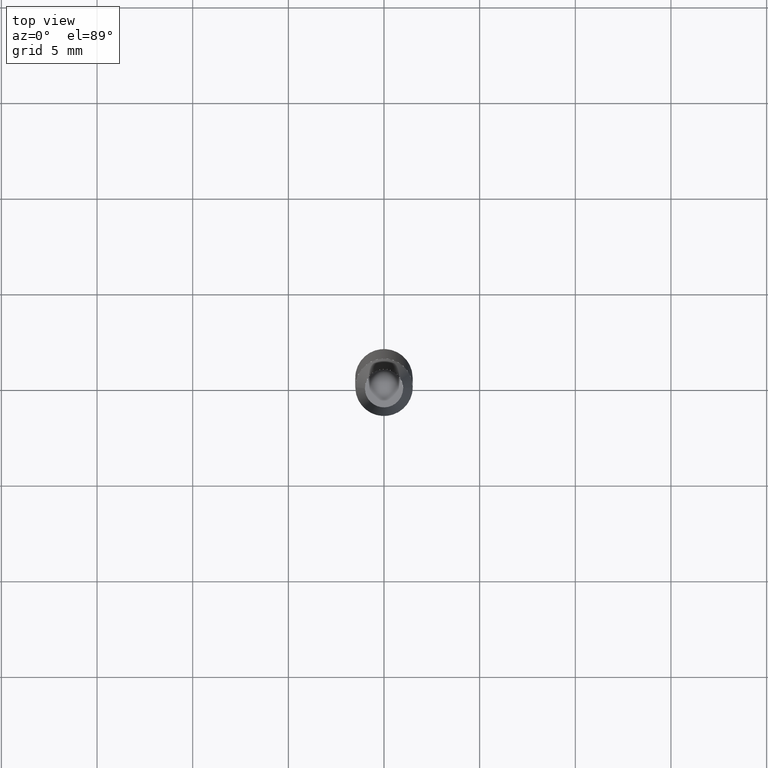
[diagram: clean part render]
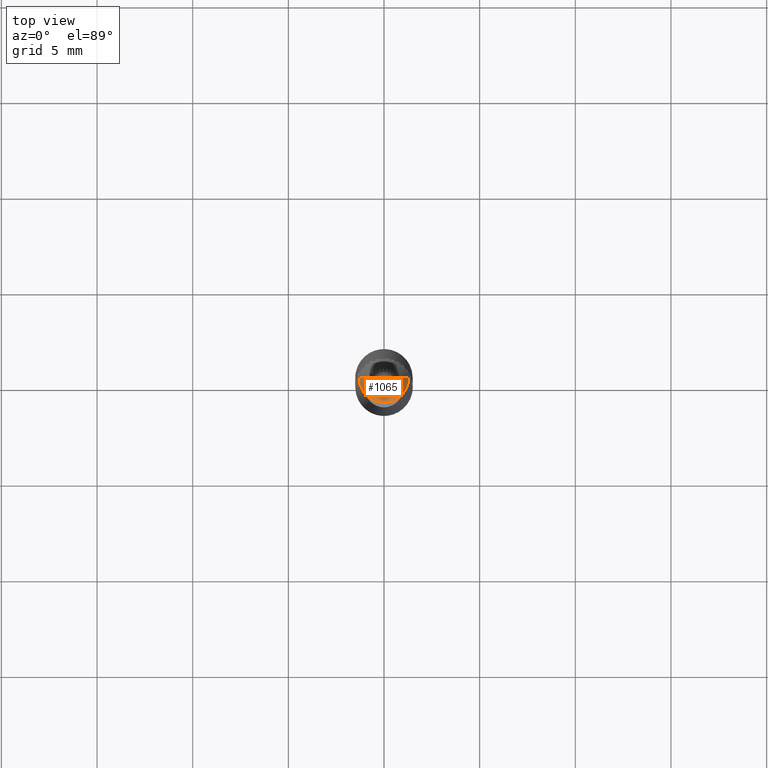
[diagram: same view with one face highlighted and labeled with its STEP entity id]
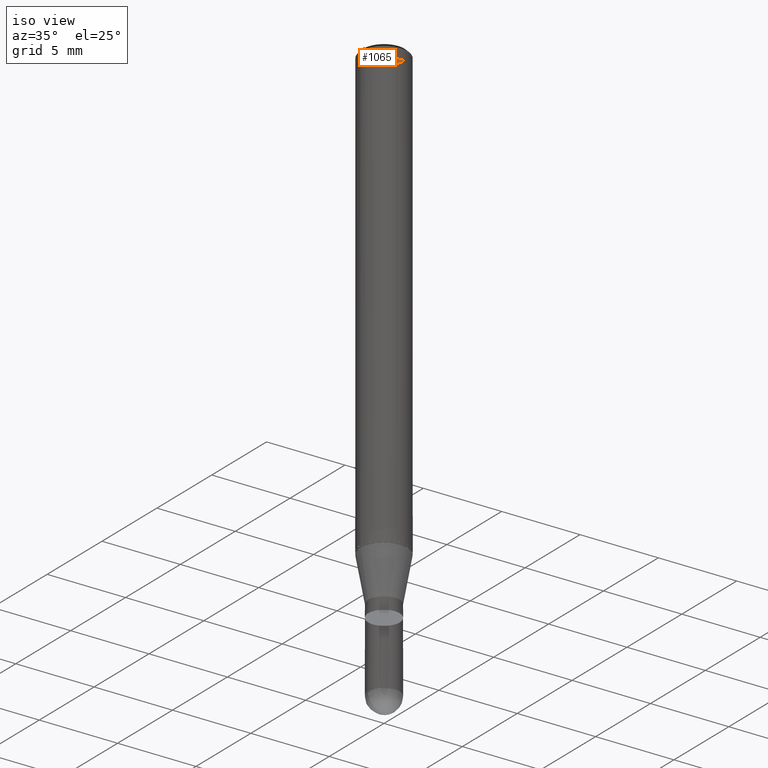
[diagram: same view with one face highlighted and labeled with its STEP entity id]
A machine part, top view. The second image highlights one B-rep face of the part: STEP entity #1065.
A second angle (iso view) of the same face is appended — the face is thin or edge-on in the first view.
In plain terms, the highlighted face is a freeform B-spline surface patch.
Its self-contained STEP definition (entity closure, byte-faithful):
#666=CARTESIAN_POINT('',(1.3,0.0,28.7));
#670=CARTESIAN_POINT('',(-1.3,0.0,28.7));
#671=CARTESIAN_POINT('',(0.0,0.0,28.7));
#684=CARTESIAN_POINT('',(-1.3,-1.3,28.7));
#685=CARTESIAN_POINT('',(0.0,-1.3,28.7));
#686=CARTESIAN_POINT('',(1.3,-1.3,28.7));
#1050=(
BOUNDED_SURFACE()
B_SPLINE_SURFACE(1,2,(
(#670,#684,#685,#686,#666),
(#671,#671,#671,#671,#671)
), .UNSPECIFIED.,.F.,.F.,.F.)
B_SPLINE_SURFACE_WITH_KNOTS((2,2),(3,2,3),(
0.0,1.0),(
0.0,0.5,1.0), .UNSPECIFIED.)
GEOMETRIC_REPRESENTATION_ITEM()
RATIONAL_B_SPLINE_SURFACE(((1.0,0.707106781187,1.0,0.707106781187,1.0),
(1.0,0.707106781187,1.0,0.707106781187,1.0)
))
REPRESENTATION_ITEM('')
SURFACE()
);
#1051=(
BOUNDED_CURVE()
B_SPLINE_CURVE(2,(#666,#686,#685,#684,#670),.UNSPECIFIED.,.F.,.F.)
B_SPLINE_CURVE_WITH_KNOTS((3,2,3),
(0.0,0.5,1.0),.UNSPECIFIED.)
CURVE()
GEOMETRIC_REPRESENTATION_ITEM()
RATIONAL_B_SPLINE_CURVE((1.0,0.707106781187,1.0,0.707106781187,1.0))
REPRESENTATION_ITEM('')
);
#1052=(
BOUNDED_CURVE()
B_SPLINE_CURVE(1,(#670,#671),.UNSPECIFIED.,.F.,.F.)
B_SPLINE_CURVE_WITH_KNOTS((2,2),
(0.0,1.0),.UNSPECIFIED.)
CURVE()
GEOMETRIC_REPRESENTATION_ITEM()
RATIONAL_B_SPLINE_CURVE((1.0,1.0))
REPRESENTATION_ITEM('')
);
#1053=(
BOUNDED_CURVE()
B_SPLINE_CURVE(1,(#671,#666),.UNSPECIFIED.,.F.,.F.)
B_SPLINE_CURVE_WITH_KNOTS((2,2),
(0.0,1.0),.UNSPECIFIED.)
CURVE()
GEOMETRIC_REPRESENTATION_ITEM()
RATIONAL_B_SPLINE_CURVE((1.0,1.0))
REPRESENTATION_ITEM('')
);
#1054=VERTEX_POINT('',#666);
#1055=VERTEX_POINT('',#670);
#1056=VERTEX_POINT('',#671);
#1057=EDGE_CURVE('',#1054,#1055,#1051,.T.);
#1058=EDGE_CURVE('',#1055,#1056,#1052,.T.);
#1059=EDGE_CURVE('',#1056,#1054,#1053,.T.);
#1060=ORIENTED_EDGE('',*,*,#1057,.T.);
#1061=ORIENTED_EDGE('',*,*,#1058,.T.);
#1062=ORIENTED_EDGE('',*,*,#1059,.T.);
#1063=EDGE_LOOP('',(#1060,#1061,#1062));
#1064=FACE_OUTER_BOUND('',#1063,.T.);
#1065=ADVANCED_FACE('',(#1064),#1050,.T.);